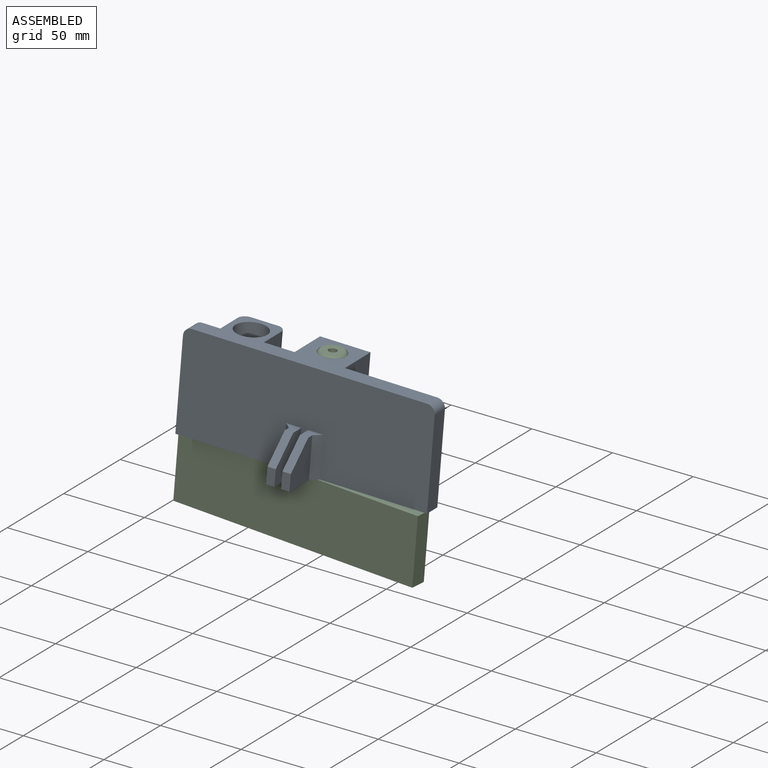
[diagram: assembled view]
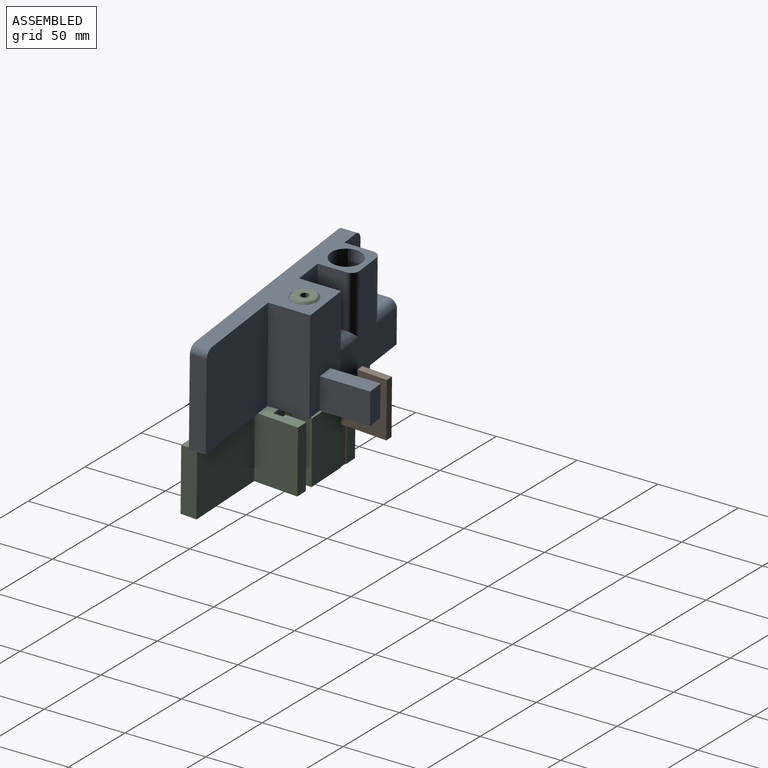
[diagram: assembled view, second angle]
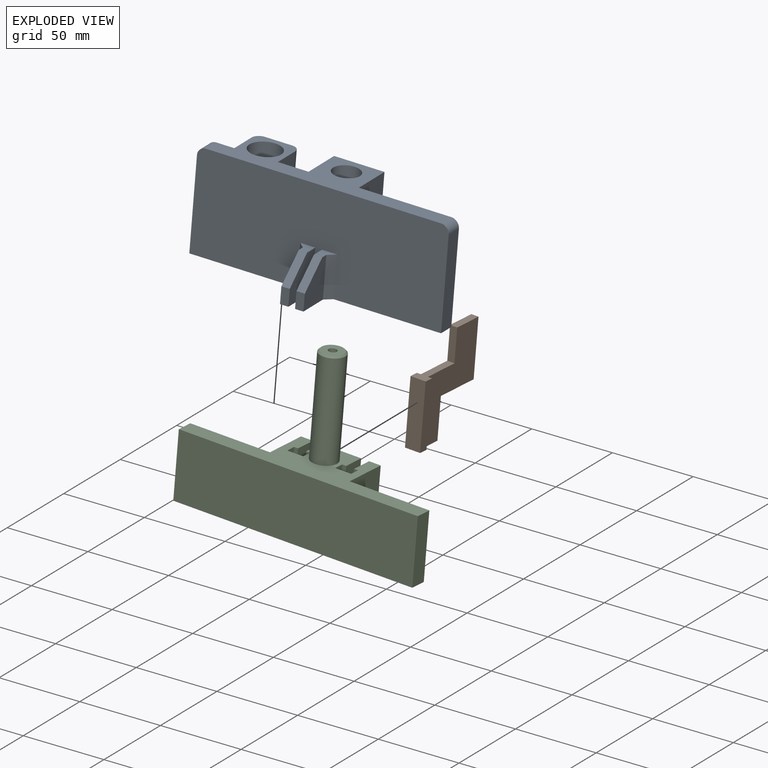
[diagram: exploded view]
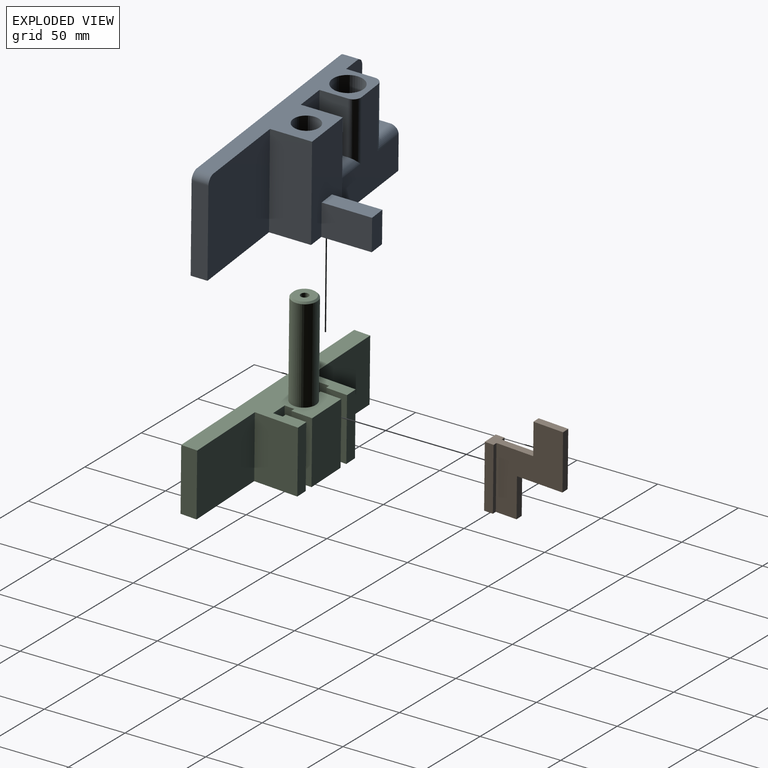
[diagram: exploded view, second angle]
ASSEMBLY  parts=3 mates=5
PART A: 55 faces, bbox 150x88x60 mm
  f0: plane 55x32mm, normal (-1,0,0), area 830.9mm2, adj f1,f4,f6,f27,f30,f33,f36,f38
  f1: plane 150x87.98mm, normal (0,0,-1), area 3571mm2, adj f0,f3,f6,f7,f8,f9,f10,f12
  f2: cylinder r=9.5mm len=47.26mm, axis (0,0,1), area 2460.2mm2, adj f11,f33,f34
  f3: plane 60x25mm, normal (-1,0,0), area 933.4mm2, adj f1,f5,f10,f11,f27,f31,f37
  f4: plane 34x15.76mm, normal (0,1,0), area 530.4mm2, adj f0,f11,f25,f30,f38
  f5: plane 34x18.24mm, normal (0,1,0), area 620.2mm2, adj f3,f11,f26,f31
  f6: plane 150x60mm, normal (0,-1,0), area 8539.3mm2, adj f0,f1,f7,f11,f13,f16,f17,f20
  f7: plane 55x10mm, normal (1,0,0), area 550mm2, adj f1,f6,f8,f39
  f8: plane 60x60mm, normal (0,1,0), area 3594.6mm2, adj f1,f7,f9,f11,f39
  f9: plane 60x25mm, normal (1,0,0), area 1500mm2, adj f1,f8,f10,f11
  f10: plane 60x30mm, normal (0,1,0), area 1600mm2, adj f1,f3,f9,f11,f40,f41,f42
  f11: plane 140x35mm, normal (0,0,1), area 2226.7mm2, adj f2,f3,f4,f5,f6,f8,f9,f10
  f12: cylinder r=8mm len=60mm, axis (0,0,-1), area 3015.9mm2, adj f1,f11
  f13: plane 25x22.94mm, normal (1,0,0), area 436.1mm2, adj f1,f6,f15,f16,f22,f49,f50,f51
  f14: plane 25x18.94mm, normal (-1,0,0), area 361.1mm2, adj f1,f15,f16,f22,f24
  f15: plane 10x5mm, normal (0,-1,0), area 50mm2, adj f1,f13,f14,f22
  f16: plane 9x7.94mm, normal (0,0,1), area 47.7mm2, adj f6,f13,f14,f22,f24
  f17: plane 25x22.98mm, normal (-1,0,0), area 437mm2, adj f1,f6,f18,f20,f21,f44,f45,f46
  f18: plane 10x5mm, normal (0,-1,0), area 50mm2, adj f1,f17,f19,f21
  f19: plane 25x18.98mm, normal (1,0,0), area 362mm2, adj f1,f18,f20,f21,f23
  f20: plane 9x7.98mm, normal (0,0,1), area 47.9mm2, adj f6,f17,f19,f21,f23
  f21: plane 15x15mm, normal (0,-0.71,0.71), area 106.1mm2, adj f17,f18,f19,f20
  f22: plane 15x15mm, normal (0,-0.71,0.71), area 106.1mm2, adj f13,f14,f15,f16
  f23: plane 25x4mm, normal (0.71,-0.71,0), area 141.4mm2, adj f1,f6,f19,f20
  f24: plane 25x4mm, normal (-0.71,-0.71,0), area 141.4mm2, adj f1,f6,f14,f16
  f25: plane 34x17mm, normal (-1,0,0), area 578mm2, adj f4,f11,f29,f30
  f26: plane 34x17mm, normal (1,0,0), area 578mm2, adj f5,f11,f28,f31
  f27: plane 60x60mm, normal (0,1,0), area 1884mm2, adj f0,f1,f3,f11,f28,f29,f36,f37
  f28: cylinder r=5mm len=39mm, axis (0,0,-1), area 281.3mm2, adj f11,f26,f27,f37
  f29: cylinder r=5mm len=39mm, axis (0,0,1), area 281.3mm2, adj f11,f25,f27,f36
  f30: plane 17x15.76mm, normal (0,0,1), area 267.9mm2, adj f0,f4,f25,f36
  f31: plane 18.24x17mm, normal (0,0,1), area 310.1mm2, adj f3,f5,f26,f37
  f32: cylinder r=9.5mm len=19mm, axis (0,0,1), area 399.2mm2, adj f1,f33,f34
  f33: cylinder r=9.5mm len=28.76mm, axis (-1,0,0), area 1355.5mm2, adj f0,f2,f32
  f34: cylinder r=9.5mm len=31.24mm, axis (-1,0,0), area 1503.9mm2, adj f2,f32,f35
  f35: plane 19x19mm, normal (-1,0,0), area 283.5mm2, adj f34
  f36: cylinder r=5mm len=20.76mm, axis (1,0,0), area 138mm2, adj f0,f27,f29,f30
  f37: cylinder r=5mm len=23.24mm, axis (1,0,0), area 157.5mm2, adj f3,f27,f28,f31
  f38: cylinder r=5mm len=10mm, axis (0,1,0), area 78.5mm2, adj f0,f4,f6,f11
  f39: cylinder r=5mm len=10mm, axis (0,-1,0), area 78.5mm2, adj f6,f7,f8,f11
  f40: plane 30x20mm, normal (-1,0,0), area 600mm2, adj f1,f10,f41,f43
  f41: plane 30x10mm, normal (0,0,1), area 300mm2, adj f10,f40,f42,f43
  f42: plane 30x20mm, normal (1,0,0), area 600mm2, adj f1,f10,f41,f43
  f43: plane 20x10mm, normal (0,1,0), area 200mm2, adj f1,f40,f41,f42
  f44: plane 3x2.5mm, normal (0,0,-1), area 7.5mm2, adj f17,f45,f46,f47
  f45: plane 10x3mm, normal (0,1,0), area 30mm2, adj f1,f17,f44,f47
  f46: plane 10x3mm, normal (0,-1,0), area 30mm2, adj f1,f17,f44,f47
  f47: plane 10x2.5mm, normal (-1,0,0), area 25mm2, adj f1,f44,f45,f46
  f48: plane 10x2.5mm, normal (1,0,0), area 25mm2, adj f1,f49,f50,f51
  f49: plane 10x3mm, normal (0,-1,0), area 30mm2, adj f1,f13,f48,f51
  f50: plane 10x3mm, normal (0,1,0), area 30mm2, adj f1,f13,f48,f51
  f51: plane 3x2.5mm, normal (0,0,-1), area 7.5mm2, adj f13,f48,f49,f50
  f52: plane 3x1.5mm, normal (-1,0,0), area 2.3mm2, adj f1,f53,f54
  f53: plane 15x1.5mm, normal (0,0.71,-0.71), area 31.8mm2, adj f0,f1,f52,f54
  f54: plane 15x1.5mm, normal (0,-0.71,-0.71), area 31.8mm2, adj f0,f1,f52,f53
PART B: 14 faces, bbox 9.5x47x60 mm
  f0: plane 40x2.5mm, normal (0,1,0), area 100mm2, adj f1,f7,f8,f9
  f1: plane 60x41.5mm, normal (1,0,0), area 1317.5mm2, adj f0,f2,f8,f9,f10,f11,f12,f13
  f2: plane 25x4.5mm, normal (0,1,0), area 112.5mm2, adj f1,f3,f8,f10
  f3: plane 60x41.5mm, normal (-1,0,0), area 1317.5mm2, adj f2,f4,f8,f9,f10,f11,f12,f13
  f4: plane 40x2.5mm, normal (0,1,0), area 100mm2, adj f3,f5,f8,f9
  f5: plane 40x5.5mm, normal (-1,0,0), area 220mm2, adj f4,f6,f8,f9
  f6: plane 40x9.5mm, normal (0,-1,0), area 380mm2, adj f5,f7,f8,f9
  f7: plane 40x5.5mm, normal (1,0,0), area 220mm2, adj f0,f6,f8,f9
  f8: plane 18.5x9.5mm, normal (0,0,1), area 110.8mm2, adj f0,f1,f2,f3,f4,f5,f6,f7
  f9: plane 28.5x9.5mm, normal (0,0,-1), area 155.8mm2, adj f0,f1,f3,f4,f5,f6,f7,f13
  f10: plane 28.5x4.5mm, normal (0,0,1), area 128.2mm2, adj f1,f2,f3,f12
  f11: plane 18.5x4.5mm, normal (0,0,-1), area 83.2mm2, adj f1,f3,f12,f13
  f12: plane 35x4.5mm, normal (0,1,0), area 157.5mm2, adj f1,f3,f10,f11
  f13: plane 20x4.5mm, normal (0,-1,0), area 90mm2, adj f1,f3,f9,f11
PART C: 31 faces, bbox 150x37x101 mm
  f0: plane 40x7.29mm, normal (0,1,0), area 291.4mm2, adj f1,f9,f11,f21
  f1: plane 150x37mm, normal (0,0,-1), area 2600mm2, adj f0,f2,f3,f4,f5,f6,f7,f8
  f2: plane 40x25.22mm, normal (0,1,0), area 1008.6mm2, adj f1,f11,f14,f27
  f3: plane 40x27mm, normal (-1,0,0), area 1080mm2, adj f1,f4,f10,f11
  f4: plane 50x40mm, normal (0,1,0), area 2000mm2, adj f1,f3,f5,f11
  f5: plane 40x10mm, normal (-1,0,0), area 400mm2, adj f1,f4,f6,f11
  f6: plane 150x40mm, normal (0,-1,0), area 6000mm2, adj f1,f5,f7,f11
  f7: plane 40x10mm, normal (1,0,0), area 400mm2, adj f1,f6,f8,f11
  f8: plane 50x40mm, normal (0,1,0), area 2000mm2, adj f1,f7,f9,f11
  f9: plane 40x27mm, normal (1,0,0), area 1080mm2, adj f0,f1,f8,f11
  f10: plane 40x7.5mm, normal (0,1,0), area 300mm2, adj f1,f3,f11,f20
  f11: plane 150x37mm, normal (0,0,1), area 2408.9mm2, adj f0,f2,f3,f4,f5,f6,f7,f8
  f12: cylinder r=7.8mm len=60mm, axis (0,0,-1), area 2940.5mm2, adj f11,f30
  f13: plane 13.6x13.6mm, normal (0,0,1), area 125.6mm2, adj f28,f30
  f14: plane 40x13mm, normal (-1,0,0), area 520mm2, adj f1,f2,f11,f15
  f15: plane 40x2.5mm, normal (0,-1,0), area 100mm2, adj f1,f11,f14,f16
  f16: plane 40x6mm, normal (-1,0,0), area 240mm2, adj f1,f11,f15,f17
  f17: plane 40x10mm, normal (0,1,0), area 400mm2, adj f1,f11,f16,f18
  f18: plane 40x6mm, normal (1,0,0), area 240mm2, adj f1,f11,f17,f19
  f19: plane 40x2.5mm, normal (0,-1,0), area 100mm2, adj f1,f11,f18,f20
  f20: plane 40x13mm, normal (1,0,0), area 520mm2, adj f1,f10,f11,f19
  f21: plane 40x13mm, normal (-1,0,0), area 520mm2, adj f0,f1,f11,f22
  f22: plane 40x2.5mm, normal (0,-1,0), area 100mm2, adj f1,f11,f21,f23
  f23: plane 40x6mm, normal (-1,0,0), area 240mm2, adj f1,f11,f22,f24
  f24: plane 40x10mm, normal (0,1,0), area 400mm2, adj f1,f11,f23,f25
  f25: plane 40x6mm, normal (1,0,0), area 240mm2, adj f1,f11,f24,f26
  f26: plane 40x2.5mm, normal (0,-1,0), area 100mm2, adj f1,f11,f25,f27
  f27: plane 40x13mm, normal (1,0,0), area 520mm2, adj f1,f2,f11,f26
  f28: cylinder r=2.5mm len=30mm, axis (0,0,1), area 471.2mm2, adj f13,f29
  f29: plane 5x5mm, normal (0,0,1), area 19.6mm2, adj f28
  f30: cone r=6.8mm half-angle=45deg, axis (0,0,-1), area 64.9mm2, adj f12,f13
PLACE A rot(axis=(-0.48,0.57,0.67),5.5deg) t=(-165.1,-54.88,-164.08)mm
PLACE B rot(axis=(-0.01,-1,0.02),177deg) t=(-180.35,-56.39,-163.2)mm
PLACE C rot(axis=(-0.66,0.72,-0.2),4.2deg) t=(-167.22,-56.78,-203.98)mm
MATE planar B.f6 <-> C.f17  axis (-0.01,-1,0.05) through (-181.45,-60.09,-183.02)mm
MATE planar B.f6 <-> C.f17  axis (-0.01,-1,0.05) through (-185.13,-59.06,-162.82)mm
MATE cylindrical C.f12 <-> A.f12  axis (-0.05,-0.05,-1) through (-165.1,-54.88,-164.08)mm
MATE planar C.f11 <-> A.f1  axis (0.05,0.05,1) through (-165.26,-65.56,-163.57)mm
MATE planar B.f7 <-> C.f18  axis (-1,0.02,0.05) through (-186.15,-57.26,-182.9)mm
